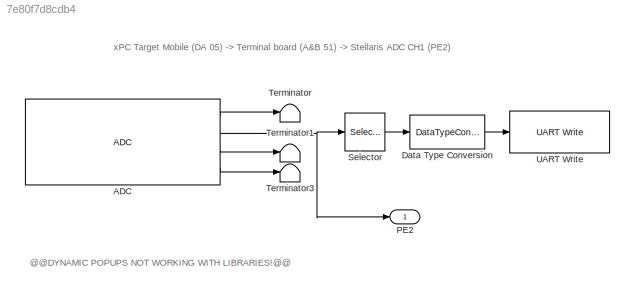
MODEL slx_7e80f7d8cdb4
KIND model
BLOCK [Reference] ADC  REF=stellaris_lib/ADC/ADC
  Config_SS0_1 = None(0)
  Config_SS0_2 = None(0)
  Config_SS0_3 = None(0)
  Config_SS0_4 = None(0)
  Config_SS0_5 = None(0)
  Config_SS0_6 = None(0)
  Config_SS0_7 = None(0)
  Config_SS0_8 = None(0)
  Config_SS1_1 = ADC_CTL_TS(128)
  Config_SS1_2 = ADC_CTL_TS(128)
  Config_SS1_3 = ADC_CTL_TS(128)
  Config_SS1_4 = ADC_CTL_TS|ADC_CTL_IE|ADC_CTL_END(224)
  Config_SS2_1 = None(0)
  Config_SS2_2 = None(0)
  Config_SS2_3 = None(0)
  Config_SS2_4 = None(0)
  Config_SS3_1 = None(0)
  Ports = [0, 4]
  SS0_ENA = disable
  SS1_ENA = enable
  SS2_ENA = disable
  SS3_ENA = disable
  SourceBlock = stellaris_lib/ADC/ADC
  SourceType = Analog to Digital Converter
  UserDataPersistent = on
  ulBase = ADC0
  ulConfig_SS0_1 = ----
  ulConfig_SS0_2 = ----
  ulConfig_SS0_3 = ----
  ulConfig_SS0_4 = ----
  ulConfig_SS0_5 = ----
  ulConfig_SS0_6 = ----
  ulConfig_SS0_7 = ----
  ulConfig_SS0_8 = ----
  ulConfig_SS1_1 = ----
  ulConfig_SS1_2 = ----
  ulConfig_SS1_3 = ----
  ulConfig_SS1_4 = ----
  ulConfig_SS2_1 = ----
  ulConfig_SS2_2 = ----
  ulConfig_SS2_3 = ----
  ulConfig_SS2_4 = ----
  ulConfig_SS3_1 = ----
  ulFactor = 64
  ulPriority_SS0 = 0
  ulPriority_SS1 = 1
  ulPriority_SS2 = 2
  ulPriority_SS3 = 3
  ulSpeed = SYSCTL_ADCSPEED_250KSPS
  ulTrigger_SS0 = ADC_TRIGGER_PROCESSOR(0)
  ulTrigger_SS1 = ADC_TRIGGER_PROCESSOR(0)
  ulTrigger_SS2 = ADC_TRIGGER_TIMER(5)
  ulTrigger_SS3 = ADC_TRIGGER_ALWAYS(15)
BLOCK [DataTypeConversion] Data Type Conversion
  Commented = on
  RndMeth = Floor
  SaturateOnIntegerOverflow = off
BLOCK [Outport] PE2
  IconDisplay = Port number
BLOCK [Selector] Selector
  Commented = on
  IndexMode = Zero-based
  IndexOptions = Index vector (dialog)
  Indices = [0]
  InputPortWidth = 4
  OutputSizes = 1
  Ports = [1, 1]
BLOCK [Terminator] Terminator
BLOCK [Terminator] Terminator1
BLOCK [Terminator] Terminator3
BLOCK [Reference] UART Write  REF=stellaris_lib/UART/UART Write
  Commented = on
  Ports = [1]
  SourceBlock = stellaris_lib/UART/UART Write
  SourceType = UART Write
  nbFlag = on
ANNOTATION (root): @@DYNAMIC POPUPS NOT WORKING WITH LIBRARIES!@@
ANNOTATION (root): xPC Target Mobile (DA 05) -> Terminal board (A&B 51) -> Stellaris ADC CH1 (PE2)
LINE ADC:1 -> Terminator:1
NET ADC:2 -> PE2:1, Selector:1
LINE ADC:3 -> Terminator1:1
LINE ADC:4 -> Terminator3:1
LINE Data Type Conversion:1 -> UART Write:1
LINE Selector:1 -> Data Type Conversion:1
note: NET lines group one-source signal fan-out (src -> all destinations, sorted); 1:1 wires keep LINE
